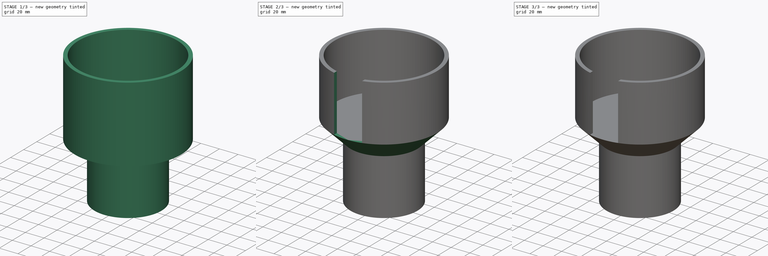
[diagram: build sequence overview — one tinted view per stage of 3, left to right]
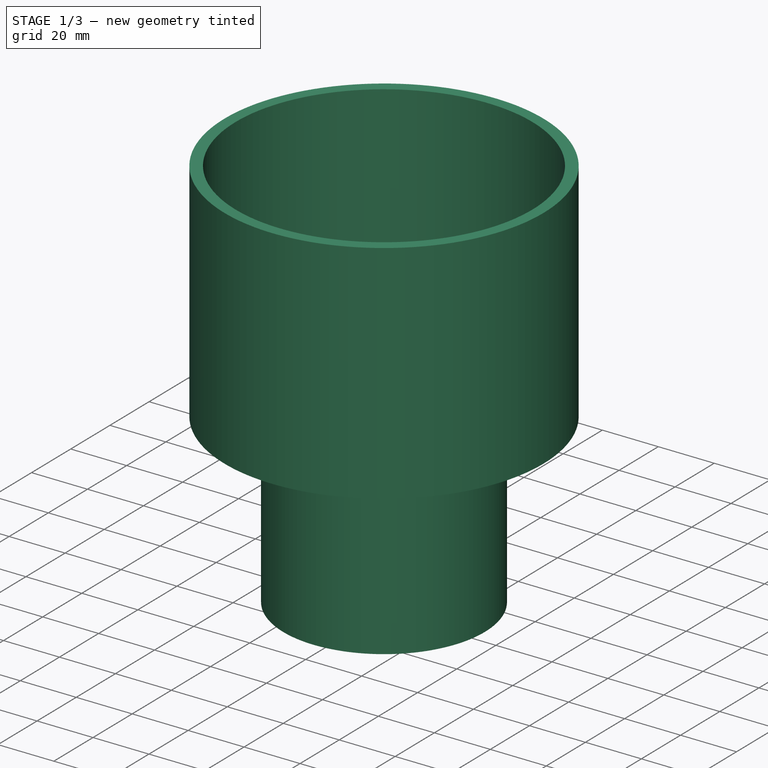
[diagram: stage 1 of 3 — iso view after this stage's code; geometry added in this stage tinted green]
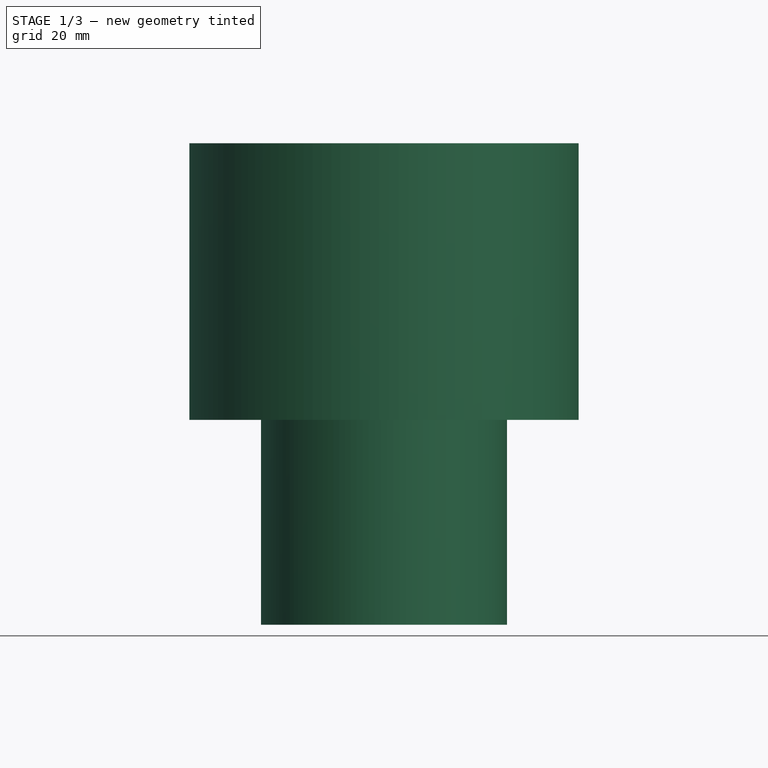
[diagram: stage 1 of 3 — front view after this stage's code; geometry added in this stage tinted green]
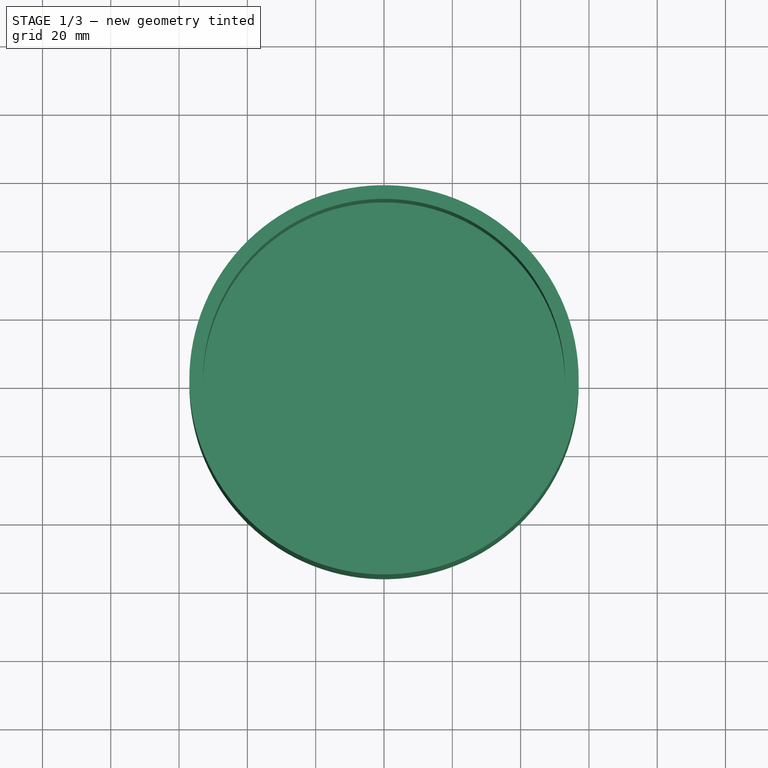
[diagram: stage 1 of 3 — top view after this stage's code; geometry added in this stage tinted green]
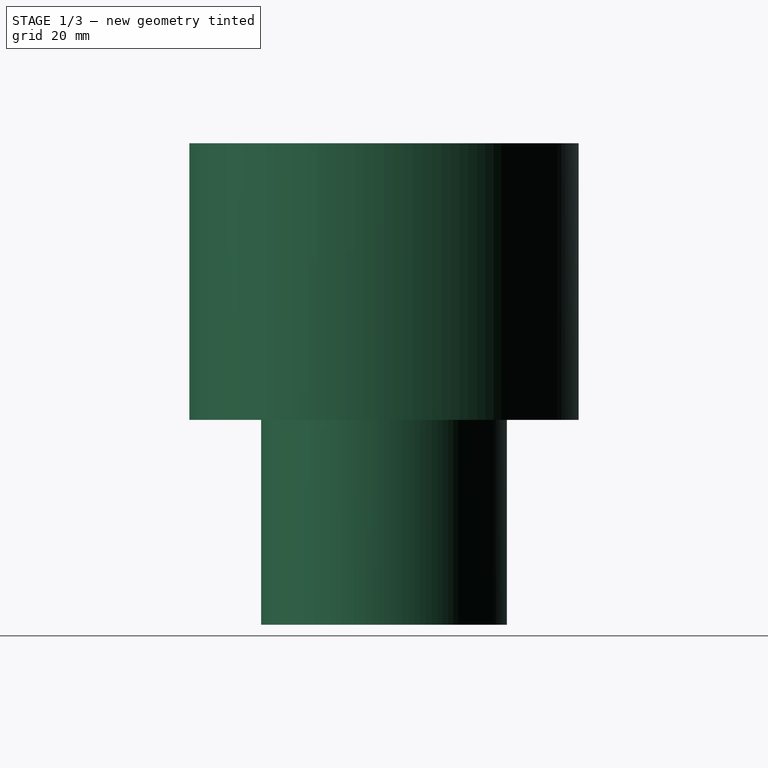
[diagram: stage 1 of 3 — right view after this stage's code; geometry added in this stage tinted green]
FCSTD DOCUMENT  (FreeCAD 0.20R24720 (Git))
Label: CupHolderAdapter
License: All rights reserved
LicenseURL: http://en.wikipedia.org/wiki/All_rights_reserved
objects: Sketcher::SketchObject×4, PartDesign::Pad×2, PartDesign::Pocket×2, PartDesign::Fillet×2, Spreadsheet::Sheet×1, PartDesign::Chamfer×1, PartDesign::Body×1, Part::FeaturePython×1
note: 20 computed .brp shape members not serialized (recipe doc carries the construction recipe); baked Part::Feature solids carry a one-line shape summary decoded from their .brp

FEATURE [Sketcher::SketchObject] Sketch
  FullyConstrained = true
  MapMode = 5
  Support = -> [XY_Plane]
  expr: Constraints[1] = <<Dimensions>>.BaseRadius
  sketch-geometry (1):
    g0: Circle CenterX=0 CenterY=0 CenterZ=0 NormalX=0 NormalY=0 NormalZ=1 AngleXU=0 Radius=36
  constraints (2):
    c: Coincident(g0,g-1)
    c: Radius(g0) = 36
FEATURE [PartDesign::Pad] Pad
  Direction = (0,0,1)
  Length = 60
  Length2 = 100
  Profile = -> Sketch
  Type = 0
  expr: Length = <<Dimensions>>.BaseHeight
FEATURE [Sketcher::SketchObject] Sketch001
  FullyConstrained = true
  MapMode = 5
  Placement = pos=(0,0,60) rot=(0,0,1;0rad)
  Support = -> [Pad]
  expr: Constraints[1] = <<Dimensions>>.CupRadius
  sketch-geometry (1):
    g0: Circle CenterX=0 CenterY=0 CenterZ=0 NormalX=0 NormalY=0 NormalZ=1 AngleXU=0 Radius=57
  constraints (2):
    c: Coincident(g0,g-1)
    c: Radius(g0) = 57
FEATURE [PartDesign::Pad] Pad001
  BaseFeature = -> Pad
  Direction = (0,0,1)
  Length = 81
  Length2 = 100
  Profile = -> Sketch001
  Type = 0
  expr: Length = <<Dimensions>>.CupHeight
FEATURE [Sketcher::SketchObject] Sketch002
  FullyConstrained = true
  MapMode = 5
  Placement = pos=(0,0,141) rot=(0,0,1;0rad)
  Support = -> [Pad001]
  expr: Constraints[1] = <<Dimensions>>.CupPocketRadius
  sketch-geometry (1):
    g0: Circle CenterX=0 CenterY=0 CenterZ=0 NormalX=0 NormalY=0 NormalZ=1 AngleXU=0 Radius=53
  constraints (2):
    c: Coincident(g0,g-1)
    c: Radius(g0) = 53
FEATURE [PartDesign::Pocket] Pocket
  BaseFeature = -> Pad001
  Length = 60
  Length2 = 100
  Profile = -> Sketch002
  Type = 0
  expr: Length = <<Dimensions>>.CupPocketDepth
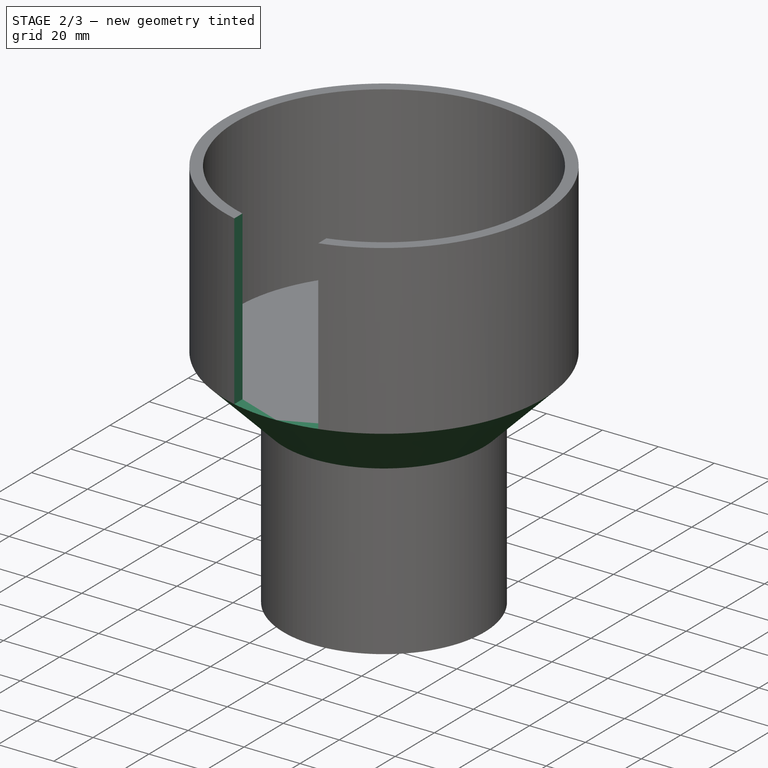
[diagram: stage 2 of 3 — iso view after this stage's code; geometry added in this stage tinted green]
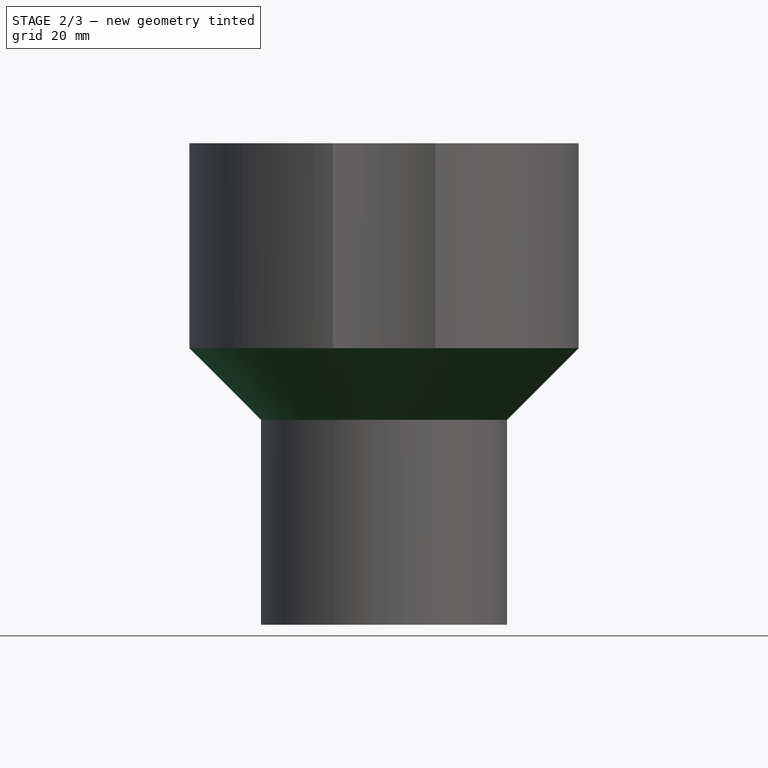
[diagram: stage 2 of 3 — front view after this stage's code; geometry added in this stage tinted green]
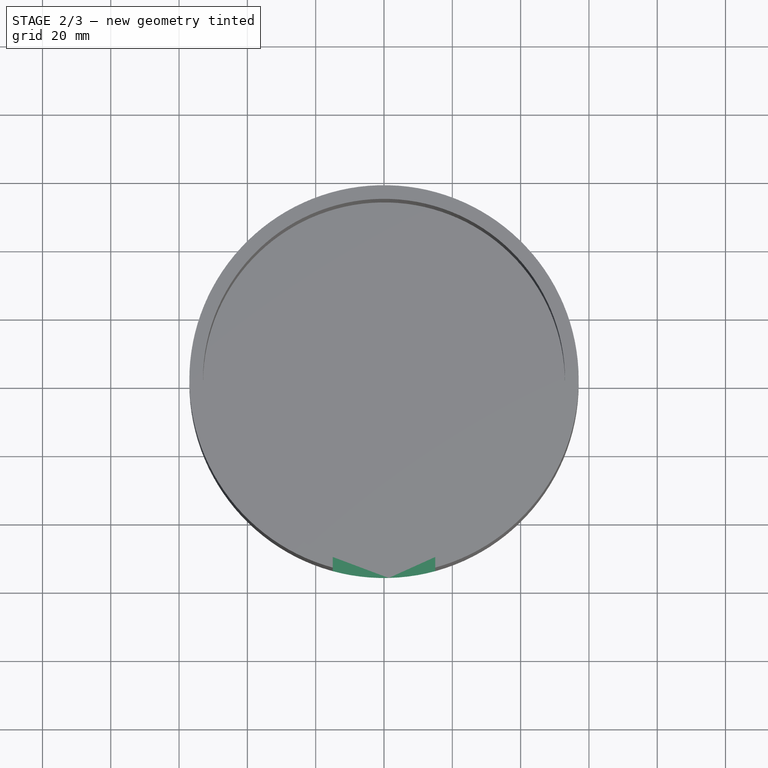
[diagram: stage 2 of 3 — top view after this stage's code; geometry added in this stage tinted green]
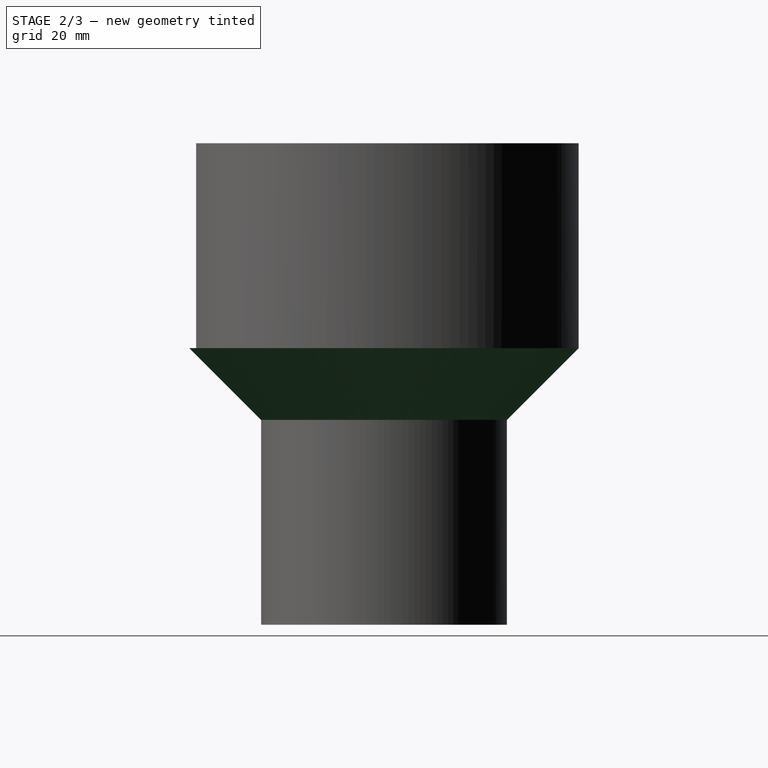
[diagram: stage 2 of 3 — right view after this stage's code; geometry added in this stage tinted green]
FEATURE [Sketcher::SketchObject] Sketch003
  FullyConstrained = true
  MapMode = 5
  Placement = pos=(0,0,141) rot=(0,0,1;0rad)
  Support = -> [Pocket]
  expr: Constraints[8] = <<Dimensions>>.CupHandleLength
  expr: Constraints[11] = <<Dimensions>>.CupHandleWidth
  expr: Constraints[9] = -<<Dimensions>>.CupHandleLength / 2
  expr: Constraints[10] = <<Dimensions>>.CupRadius - <<Dimensions>>.CupHandleWidth * 3 / 4
  sketch-geometry (4):
    g0: LineSegment StartX=15 StartY=-49.5 StartZ=0 EndX=-15 EndY=-49.5 EndZ=0
    g1: LineSegment StartX=-15 StartY=-49.5 StartZ=0 EndX=-15 EndY=-59.5 EndZ=0
    g2: LineSegment StartX=-15 StartY=-59.5 StartZ=0 EndX=15 EndY=-59.5 EndZ=0
    g3: LineSegment StartX=15 StartY=-59.5 StartZ=0 EndX=15 EndY=-49.5 EndZ=0
  constraints (12):
    c: Coincident(g0,g1)
    c: Coincident(g1,g2)
    c: Coincident(g2,g3)
    c: Coincident(g3,g0)
    c: Horizontal(g0)
    c: Horizontal(g2)
    c: Vertical(g1)
    c: Vertical(g3)
    c: DistanceX(g0,g0) = 30
    c: DistanceX(g0,g-1) = -15
    c: DistanceY(g0,g-1) = 49.5
    c: DistanceY(g2,g0) = 10
FEATURE [PartDesign::Pocket] Pocket001
  BaseFeature = -> Pocket
  Length = 60
  Length2 = 100
  Profile = -> Sketch003
  Type = 0
  expr: Length = <<Dimensions>>.CupPocketDepth
FEATURE [Spreadsheet::Sheet] Spreadsheet  label="Dimensions"
  cells = B1=Part Dimensions; B3=BaseRadius; C3(BaseRadius)=36; B4=BaseHeight; C4(BaseHeight)=60; B6=CupRadius; C6(CupRadius)=57; B7=CupHeight; C7(CupHeight)=81; B9=CupPocketRadius; C9(CupPocketRadius)=53; B10=CupPocketDepth; C10(CupPocketDepth)=60; B12=CupHandleLength; C12(CupHandleLength)=30; B13=CupHandleWidth; C13(CupHandleWidth)=10
FEATURE [PartDesign::Chamfer] Chamfer
  Angle = 45
  Base = -> Pocket001 [Edge1]
  BaseFeature = -> Pocket001
  ChamferType = 0
  FlipDirection = false
  Refine = true
  Size = 20.99
  Size2 = 1
  SupportTransform = false
  expr: Size = <<Dimensions>>.CupRadius - <<Dimensions>>.BaseRadius - 0.01
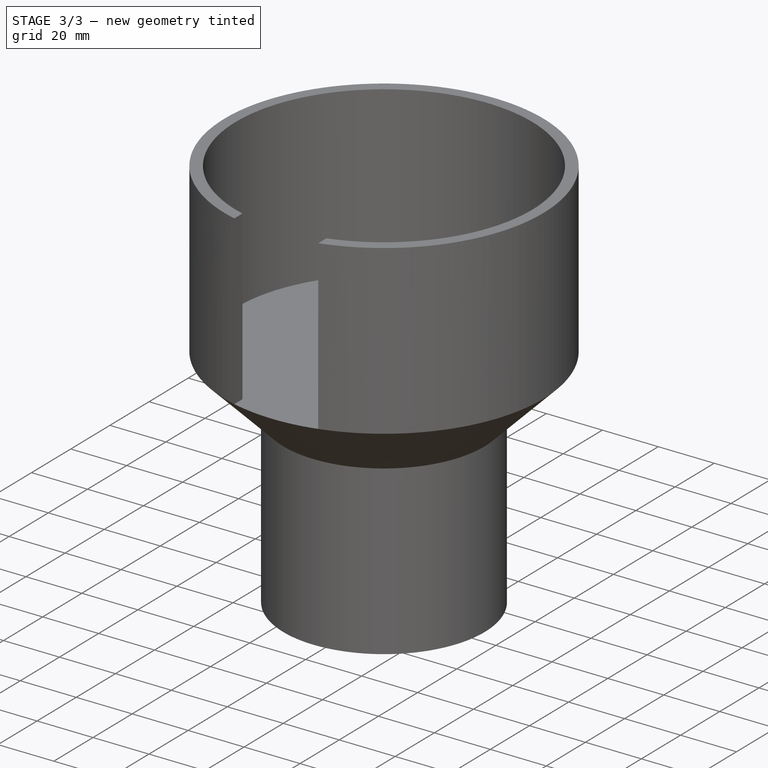
[diagram: stage 3 of 3 — iso view after this stage's code; geometry added in this stage tinted green]
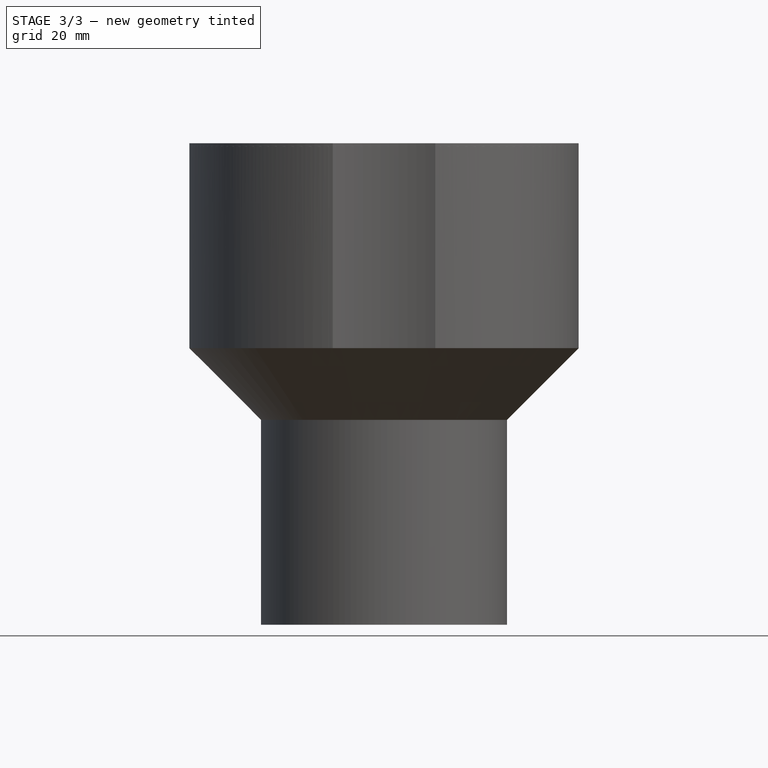
[diagram: stage 3 of 3 — front view after this stage's code; geometry added in this stage tinted green]
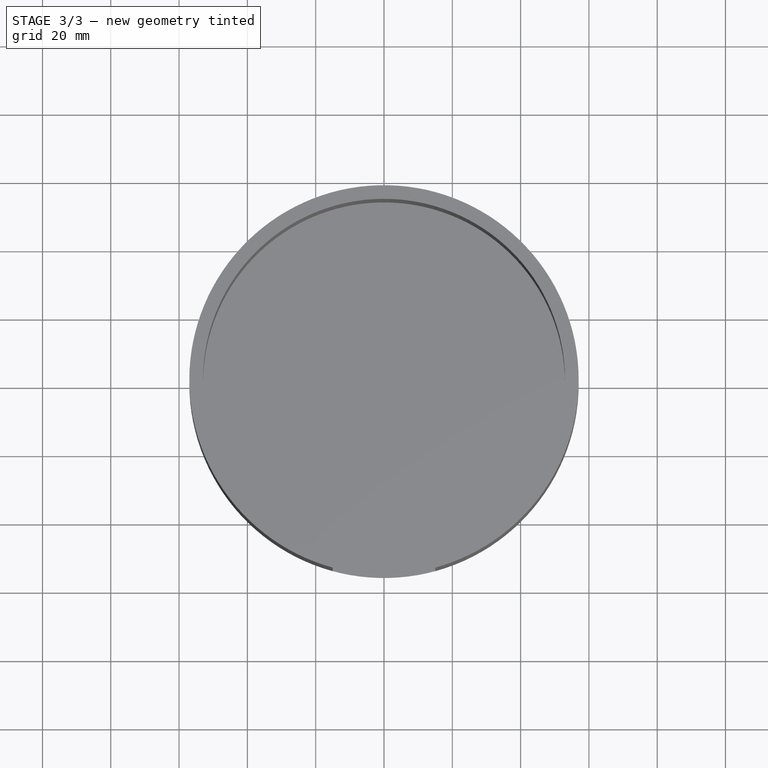
[diagram: stage 3 of 3 — top view after this stage's code; geometry added in this stage tinted green]
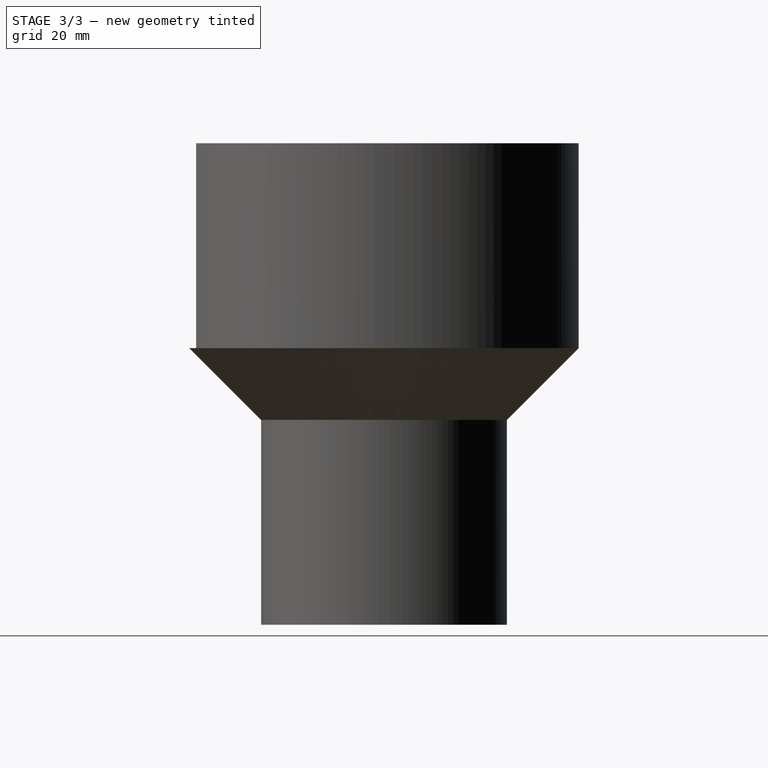
[diagram: stage 3 of 3 — right view after this stage's code; geometry added in this stage tinted green]
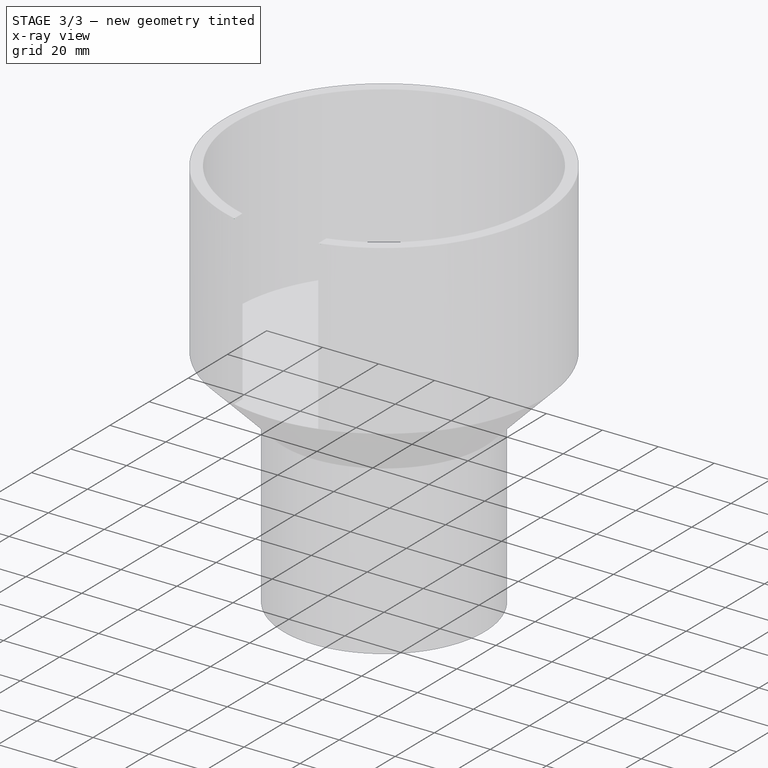
[diagram: stage 3 of 3 — x-ray composite at the iso view; earlier geometry ghosted, this stage's added geometry solid]
FEATURE [PartDesign::Fillet] Fillet
  Base = -> Chamfer [Edge11,Edge12,Edge3,Edge5,Edge7,Edge17,Edge4,Edge14,Edge10,Edge13]
  BaseFeature = -> Chamfer
  Radius = 1
  SupportTransform = false
FEATURE [PartDesign::Fillet] Fillet001
  Base = -> Fillet [Edge54]
  BaseFeature = -> Fillet
  Radius = 1
  SupportTransform = false
FEATURE [PartDesign::Body] Body
  Group = -> [Sketch,Pad,Sketch001,Pad001,Sketch002,Pocket,Sketch003,Pocket001,Chamfer,Fillet,Fillet001]
  Origin = -> Origin
  Tip = -> Fillet001
FEATURE [Part::FeaturePython] refine  label="refine_Chamfer"  # WARN: FeaturePython — macro-defined, semantics opaque (R4)
  Base = -> Chamfer
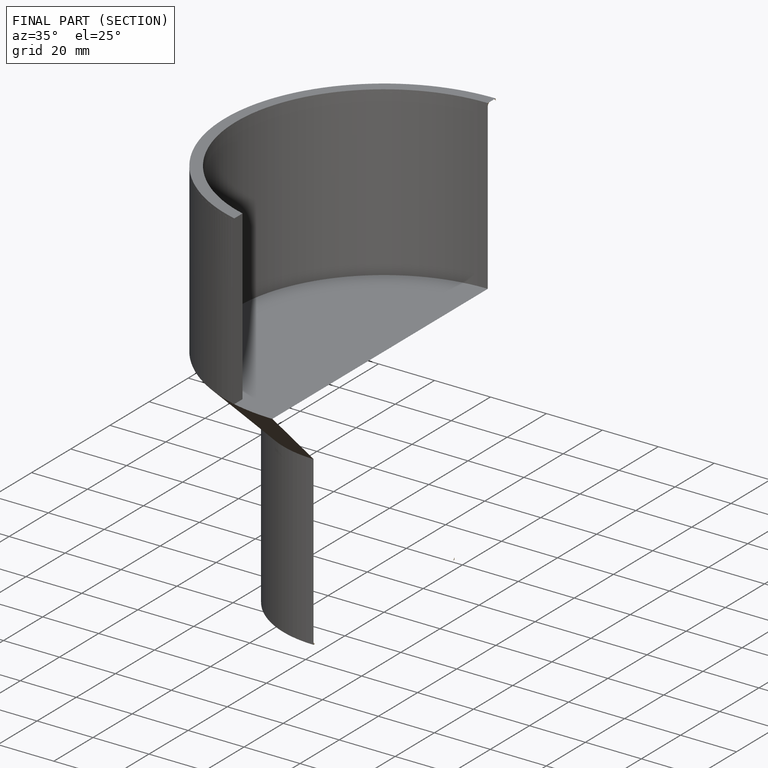
[diagram: finished part — half-section view (interior)]
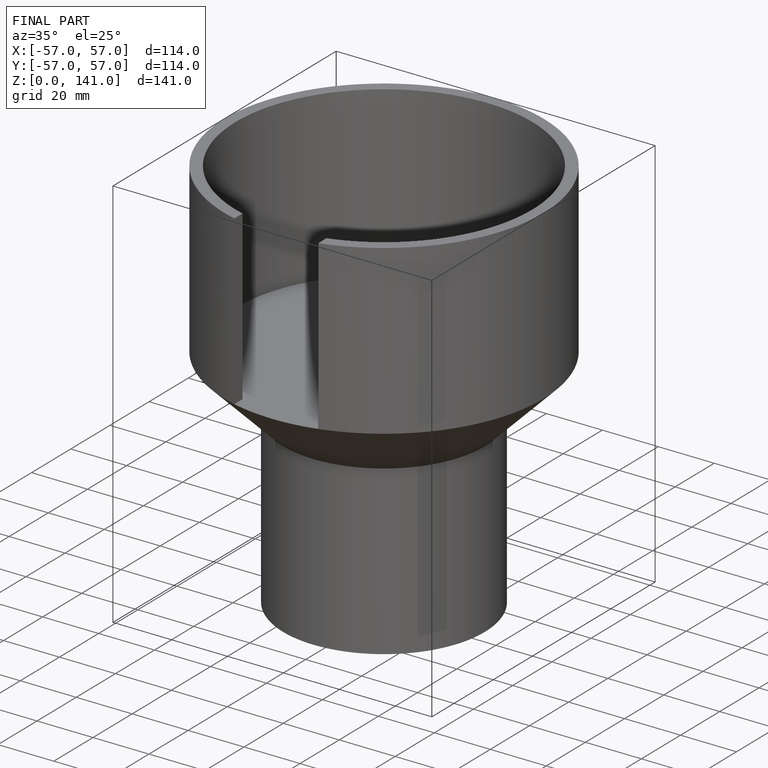
[diagram: finished part — iso view with bounding-box wireframe]
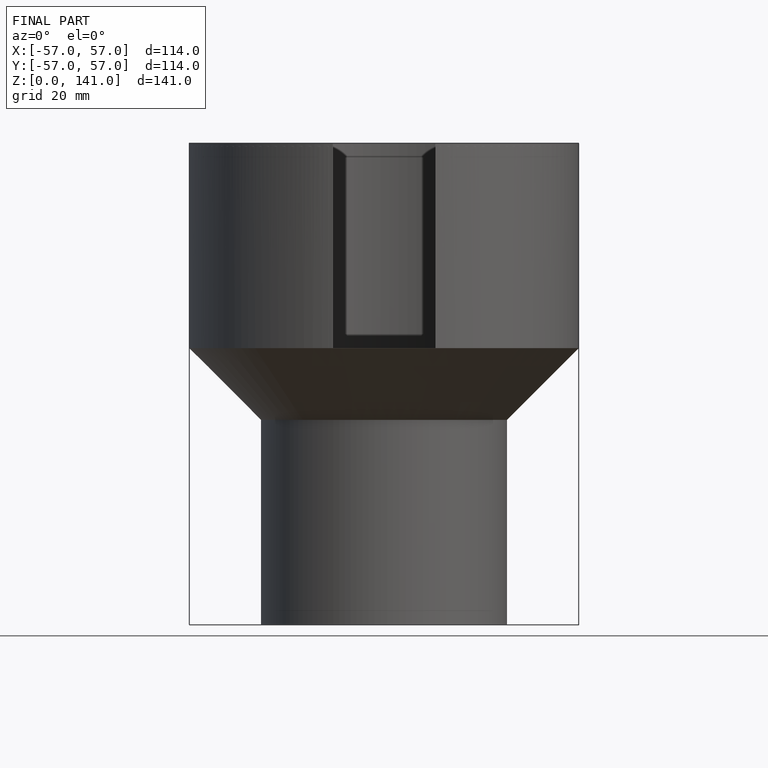
[diagram: finished part — front view with bounding-box wireframe]
